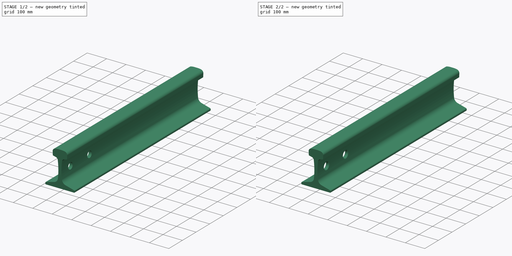
[diagram: build sequence overview — one tinted view per stage of 2, left to right]
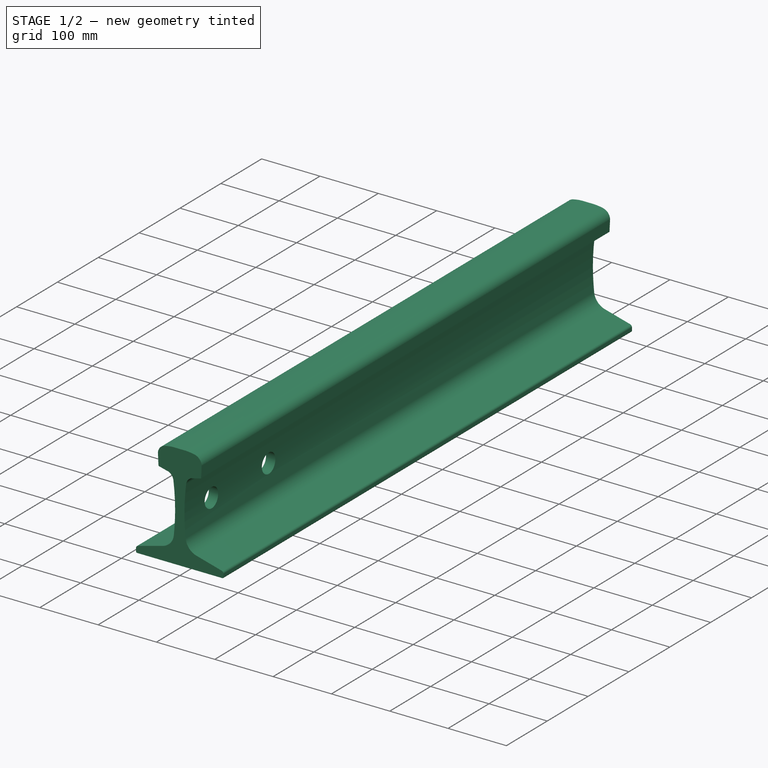
[diagram: stage 1 of 2 — iso view after this stage's code; geometry added in this stage tinted green]
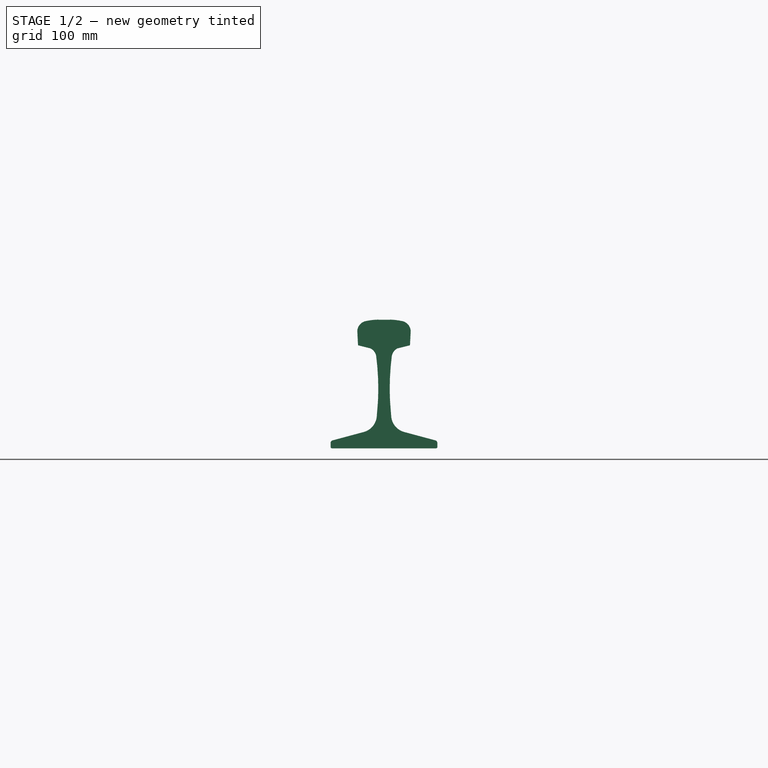
[diagram: stage 1 of 2 — front view after this stage's code; geometry added in this stage tinted green]
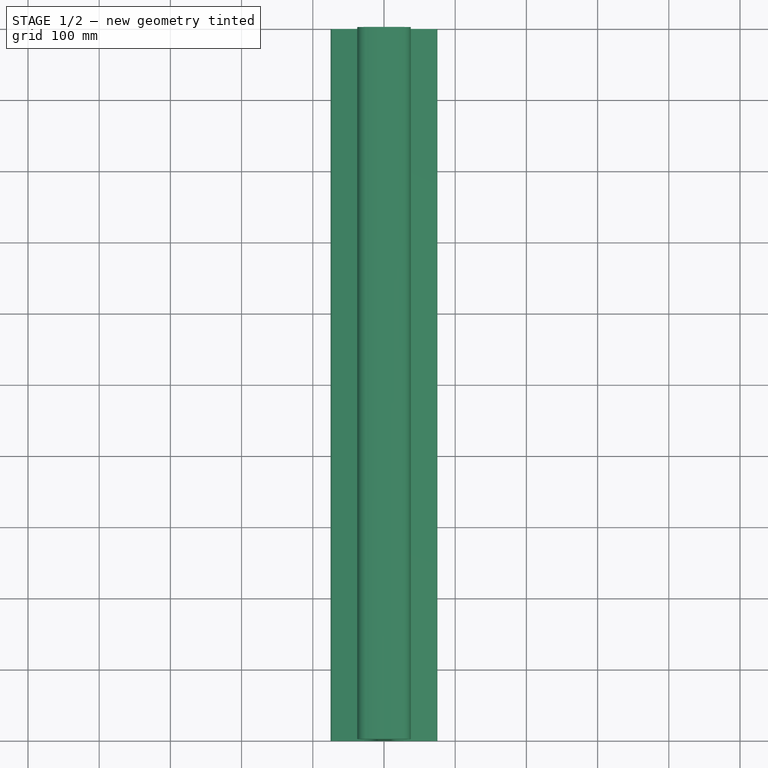
[diagram: stage 1 of 2 — top view after this stage's code; geometry added in this stage tinted green]
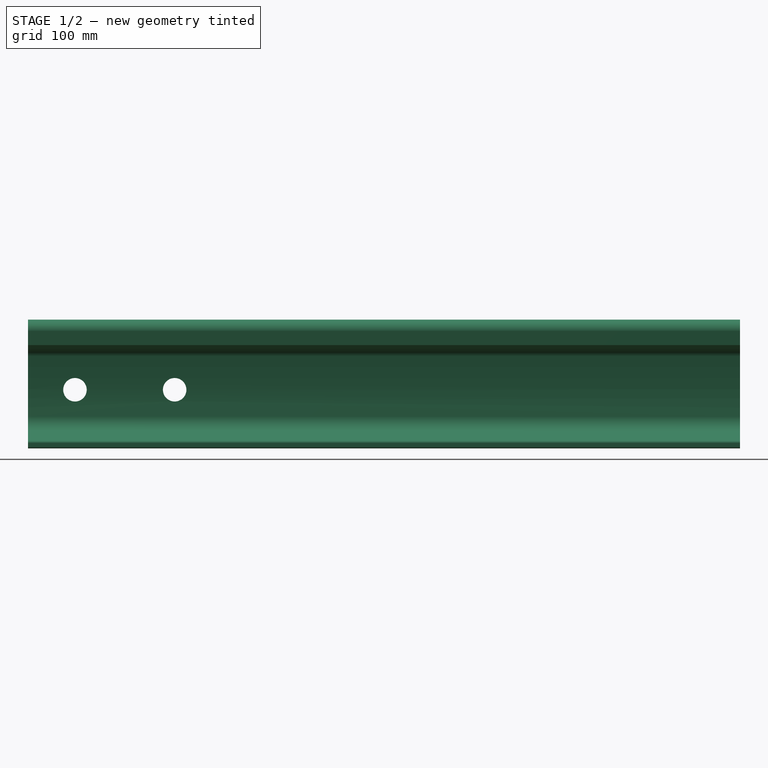
[diagram: stage 1 of 2 — right view after this stage's code; geometry added in this stage tinted green]
FCSTD DOCUMENT  (FreeCAD 0.21R33771 (Git))
Label: Rels_2
License: All rights reserved
LicenseURL: http://en.wikipedia.org/wiki/All_rights_reserved
objects: Sketcher::SketchObject×2, PartDesign::Pad×1, PartDesign::Plane×1, PartDesign::Pocket×1, PartDesign::Chamfer×1, PartDesign::Body×1
note: 10 computed .brp shape members not serialized (recipe doc carries the construction recipe); baked Part::Feature solids carry a one-line shape summary decoded from their .brp

FEATURE [Sketcher::SketchObject] Sketch
  FullyConstrained = false
  MapMode = 5
  Placement = pos=(0,0,0) rot=(1,0,0;1.5708rad)
  Support = -> [XZ_Plane]
  sketch-geometry (56):
    g0: GeomPoint X=19.6 Y=57.2948 Z=0
    g1: LineSegment StartX=-40.7283 StartY=97.3948 StartZ=0 EndX=81.9926 EndY=97.3948 EndZ=0
    g2: GeomPoint X=16.4 Y=55.4948 Z=0
    g3: GeomPoint X=10.98 Y=46.5948 Z=0
    g4: LineSegment StartX=19.6 StartY=57.2948 StartZ=0 EndX=35.3723 EndY=61.2378 EndZ=0
    g5: LineSegment StartX=19.6 StartY=57.2948 StartZ=0 EndX=59.8713 EndY=57.2948 EndZ=0
    g6: GeomPoint X=10 Y=97.4948 Z=0
    g7: GeomPoint X=10 Y=97.4948 Z=0
    g8: ArcOfCircle CenterX=9.9995 CenterY=-402.505 CenterZ=0 NormalX=0 NormalY=0 NormalZ=1 AngleXU=0 Radius=500 StartAngle=1.5708 EndAngle=1.5908
    g9: ArcOfCircle CenterX=7.49429 CenterY=17.534 CenterZ=0 NormalX=0 NormalY=0 NormalZ=1 AngleXU=0 Radius=80 StartAngle=1.35595 EndAngle=1.53947
    g10: ArcOfCircle CenterX=22.5248 CenterY=80.8321 CenterZ=0 NormalX=0 NormalY=0 NormalZ=1 AngleXU=0 Radius=15 StartAngle=0.0575424 EndAngle=1.43537
    g11: LineSegment StartX=37.5 StartY=81.6948 StartZ=0 EndX=36.5051 EndY=61.7948 EndZ=0
    g12: ArcOfCircle CenterX=34.6447 CenterY=64.1482 CenterZ=0 NormalX=0 NormalY=0 NormalZ=1 AngleXU=0 Radius=3 StartAngle=4.95736 EndAngle=5.38134
    g13: ArcOfCircle CenterX=21.3117 CenterY=50.5073 CenterZ=0 NormalX=0 NormalY=0 NormalZ=1 AngleXU=0 Radius=7 StartAngle=1.81783 EndAngle=2.34854
    g14: ArcOfCircle CenterX=25.7036 CenterY=43.7286 CenterZ=0 NormalX=0 NormalY=0 NormalZ=1 AngleXU=0 Radius=15 StartAngle=2.23985 EndAngle=2.94933
    g15: LineSegment StartX=35.3723 StartY=61.2378 StartZ=0 EndX=0 EndY=52.3948 EndZ=0
    g16: ArcOfCircle CenterX=378 CenterY=-0.270437 CenterZ=0 NormalX=0 NormalY=0 NormalZ=1 AngleXU=0 Radius=370 StartAngle=3.01459 EndAngle=3.14115
    g17: LineSegment StartX=37.4959 StartY=97.3948 StartZ=0 EndX=37.4959 EndY=81.6135 EndZ=0
    g18: LineSegment StartX=38.2849 StartY=97.3948 StartZ=0 EndX=37.4959 EndY=81.6135 EndZ=0
    g19: ArcOfCircle CenterX=407.987 CenterY=3.15486 CenterZ=0 NormalX=0 NormalY=0 NormalZ=1 AngleXU=0 Radius=400 StartAngle=3.14974 EndAngle=3.24631
    g20: ArcOfCircle CenterX=35.0528 CenterY=-36.1585 CenterZ=0 NormalX=0 NormalY=0 NormalZ=1 AngleXU=0 Radius=25 StartAngle=3.24168 EndAngle=4.49251
    g21: LineSegment StartX=29.6 StartY=-60.5566 StartZ=0 EndX=72.0377 EndY=-71.9566 EndZ=0
    g22: LineSegment StartX=73 StartY=-83.1566 StartZ=0 EndX=0 EndY=-83.1566 EndZ=0
    g23: LineSegment StartX=0 StartY=-52.6052 StartZ=0 EndX=156.528 EndY=-52.6052 EndZ=0
    g24: LineSegment StartX=75 StartY=-81.1566 StartZ=0 EndX=75 EndY=-75.8196 EndZ=0
    g25: ArcOfCircle CenterX=71 CenterY=-75.8196 CenterZ=0 NormalX=0 NormalY=0 NormalZ=1 AngleXU=0 Radius=4 StartAngle=1e-15 EndAngle=1.30836
    g26: ArcOfCircle CenterX=73 CenterY=-81.1566 CenterZ=0 NormalX=0 NormalY=0 NormalZ=1 AngleXU=0 Radius=2 StartAngle=4.71239 EndAngle=6.28319
    g27: LineSegment StartX=0 StartY=-52.6052 StartZ=0 EndX=110.442 EndY=-82.2731 EndZ=0
    g28: GeomPoint X=-19.6 Y=57.2948 Z=0
    g29: LineSegment StartX=40.7283 StartY=97.3948 StartZ=0 EndX=-81.9926 EndY=97.3948 EndZ=0
    g30: GeomPoint X=-16.4 Y=55.4948 Z=0
    g31: GeomPoint X=-10.98 Y=46.5948 Z=0
    g32: LineSegment StartX=-19.6 StartY=57.2948 StartZ=0 EndX=-35.3723 EndY=61.2378 EndZ=0
    g33: LineSegment StartX=-19.6 StartY=57.2948 StartZ=0 EndX=-59.8713 EndY=57.2948 EndZ=0
    g34: GeomPoint X=-10 Y=97.4948 Z=0
    g35: GeomPoint X=-10 Y=97.4948 Z=0
    g36: ArcOfCircle CenterX=-9.9995 CenterY=-402.505 CenterZ=0 NormalX=0 NormalY=0 NormalZ=1 AngleXU=0 Radius=500 StartAngle=1.5508 EndAngle=1.5708
    g37: ArcOfCircle CenterX=-7.49429 CenterY=17.534 CenterZ=0 NormalX=0 NormalY=0 NormalZ=1 AngleXU=0 Radius=80 StartAngle=1.60212 EndAngle=1.78564
    g38: ArcOfCircle CenterX=-22.5248 CenterY=80.8321 CenterZ=0 NormalX=0 NormalY=0 NormalZ=1 AngleXU=0 Radius=15 StartAngle=1.70622 EndAngle=3.08405
    g39: LineSegment StartX=-37.5 StartY=81.6948 StartZ=0 EndX=-36.5051 EndY=61.7948 EndZ=0
    g40: ArcOfCircle CenterX=-34.6447 CenterY=64.1482 CenterZ=0 NormalX=0 NormalY=0 NormalZ=1 AngleXU=0 Radius=3 StartAngle=4.04344 EndAngle=4.46741
    g41: ArcOfCircle CenterX=-21.3117 CenterY=50.5073 CenterZ=0 NormalX=0 NormalY=0 NormalZ=1 AngleXU=0 Radius=7 StartAngle=0.793053 EndAngle=1.32376
    g42: ArcOfCircle CenterX=-25.7036 CenterY=43.7286 CenterZ=0 NormalX=0 NormalY=0 NormalZ=1 AngleXU=0 Radius=15 StartAngle=0.19226 EndAngle=0.901746
    g43: LineSegment StartX=-35.3723 StartY=61.2378 StartZ=0 EndX=0 EndY=52.3948 EndZ=0
    g44: ArcOfCircle CenterX=-378 CenterY=-0.270437 CenterZ=0 NormalX=0 NormalY=0 NormalZ=1 AngleXU=0 Radius=370 StartAngle=0.000446478 EndAngle=0.127004
    g45: LineSegment StartX=-37.4959 StartY=97.3948 StartZ=0 EndX=-37.4959 EndY=81.6135 EndZ=0
    g46: LineSegment StartX=-38.2849 StartY=97.3948 StartZ=0 EndX=-37.4959 EndY=81.6135 EndZ=0
    g47: ArcOfCircle CenterX=-407.987 CenterY=3.15486 CenterZ=0 NormalX=0 NormalY=0 NormalZ=1 AngleXU=0 Radius=400 StartAngle=6.17847 EndAngle=6.27503
    g48: ArcOfCircle CenterX=-35.0528 CenterY=-36.1585 CenterZ=0 NormalX=0 NormalY=0 NormalZ=1 AngleXU=0 Radius=25 StartAngle=4.93227 EndAngle=6.18309
    g49: LineSegment StartX=-29.6 StartY=-60.5566 StartZ=0 EndX=-72.0377 EndY=-71.9566 EndZ=0
    g50: LineSegment StartX=-73 StartY=-83.1566 StartZ=0 EndX=0 EndY=-83.1566 EndZ=0
    g51: LineSegment StartX=0 StartY=-52.6052 StartZ=0 EndX=-156.528 EndY=-52.6052 EndZ=0
    g52: LineSegment StartX=-75 StartY=-81.1566 StartZ=0 EndX=-75 EndY=-75.8196 EndZ=0
    g53: ArcOfCircle CenterX=-71 CenterY=-75.8196 CenterZ=0 NormalX=0 NormalY=0 NormalZ=1 AngleXU=0 Radius=4 StartAngle=1.83323 EndAngle=3.14159
    g54: ArcOfCircle CenterX=-73 CenterY=-81.1566 CenterZ=0 NormalX=0 NormalY=0 NormalZ=1 AngleXU=0 Radius=2 StartAngle=3.14159 EndAngle=4.71239
    g55: LineSegment StartX=0 StartY=-52.6052 StartZ=0 EndX=-110.442 EndY=-82.2731 EndZ=0
  constraints (137):
    c: DistanceX(g-1,g0) = 19.6
    c: Horizontal(g1)
    c: Distance(g0,g1) = 40.1
    c: DistanceX(g-1,g2) = 16.4
    c: Distance(g2,g1) = 41.9
    c: Distance(g3,g1) = 50.8
    c: Coincident(g4,g0)
    c: Coincident(g5,g4)
    c: Horizontal(g5)
    c: Distance(g10,g1) = 15.7
    c: Coincident(g6,g7)
    c: DistanceX(g10) = 37.5
    c: DistanceX(g-1,g6) = 10
    c: Coincident(g8,g6)
    c: Radius(g8) = 500
    c: PointOnObject(g8,g-2)
    c: PointOnObject(g8,g1)
    c: Distance(g8,g1) = 0.1
    c: Coincident(g9,g8)
    c: Radius(g9) = 80
    c: DistanceX(g-1,g9) = 24.55
    c: Distance(g9,g1) = 1.7
    c: Coincident(g10,g9)
    c: Radius(g10) = 15
    c: Coincident(g11,g10)
    c: Coincident(g12,g4)
    c: Radius(g12) = 3
    c: Angle(g5,g4) = 0.244974  '1:4'
    c: Coincident(g13,g4)
    c: Coincident(g13,g2)
    c: Radius(g13) = 7
    c: Coincident(g14,g13)
    c: Radius(g14) = 15
    c: Coincident(g3,g14)
    c: Coincident(g15,g4)
    c: PointOnObject(g4,g15)
    c: PointOnObject(g15,g-2)
    c: Coincident(g16,g14)
    c: DistanceX(g16) = 8
    c: Vertical(g17)
    c: PointOnObject(g10,g18)
    c: PointOnObject(g11,g18)
    c: Angle(g18,g17) = 0.0499513
    c: Radius(g16) = 370
    c: Coincident(g19,g16)
    c: Radius(g19) = 400
    c: Coincident(g20,g19)
    c: Radius(g20) = 25
    c: Coincident(g18,g17)
    c: PointOnObject(g17,g1)
    c: PointOnObject(g18,g1)
    c: DistanceX(g-2,g14) = 10.98
    c: Distance(g16,g1) = 97.5
    c: Coincident(g21,g20)
    c: PointOnObject(g23,g-2)
    c: DistanceY(g23,g15) = 105
    c: DistanceX(g-1,g20) = 29.6
    c: PointOnObject(g22,g-2)
    c: Horizontal(g22)
    c: Distance(g20,g22) = 22.6
    c: Horizontal(g23)
    c: Distance(g19,g22) = 44.5
    c: Vertical(g24)
    c: Tangent(g21,g25) = 1.5708
    c: Tangent(g24,g25) = -1.5708
    c: Radius(g25) = 4
    c: Tangent(g24,g26) = -1.5708
    c: Tangent(g22,g26) = 1.5708
    c: Radius(g26) = 2
    c: DistanceY(g22,g21) = 11.2
    c: DistanceX(g22,g24) = 75
    c: Coincident(g27,g23)
    c: PointOnObject(g21,g27)
    c: PointOnObject(g20,g27)
    c: Distance(g11,g1) = 35.6
    c: Coincident(g12,g11)
    c: Horizontal(g29)
    c: Distance(g28,g29) = 40.1
    c: Distance(g30,g29) = 41.9
    c: Distance(g31,g29) = 50.8
    c: Coincident(g32,g28)
    c: Coincident(g33,g32)
    c: Horizontal(g33)
    c: Distance(g38,g29) = 15.7
    c: Coincident(g34,g35)
    c: Coincident(g36,g34)
    c: Radius(g36) = 500
    c: PointOnObject(g36,g29)
    c: Distance(g36,g29) = 0.1
    c: Coincident(g37,g36)
    c: Radius(g37) = 80
    c: Distance(g37,g29) = 1.7
    c: Coincident(g38,g37)
    c: Radius(g38) = 15
    c: Coincident(g39,g38)
    c: Coincident(g40,g32)
    c: Radius(g40) = 3
    c: Angle(g33,g32) = -0.244974  '1:4'
    c: Coincident(g41,g32)
    c: Coincident(g41,g30)
    c: Radius(g41) = 7
    c: Coincident(g42,g41)
    c: Radius(g42) = 15
    c: Coincident(g31,g42)
    c: Coincident(g43,g32)
    c: PointOnObject(g32,g43)
    c: Coincident(g44,g42)
    c: Vertical(g45)
    c: PointOnObject(g38,g46)
    c: PointOnObject(g39,g46)
    c: Angle(g46,g45) = -0.0499513
    c: Radius(g44) = 370
    c: Coincident(g47,g44)
    c: Radius(g47) = 400
    c: Coincident(g48,g47)
    c: Radius(g48) = 25
    c: Coincident(g46,g45)
    c: PointOnObject(g45,g29)
    c: PointOnObject(g46,g29)
    c: Distance(g44,g29) = 97.5
    c: Coincident(g49,g48)
    c: Horizontal(g50)
    c: Distance(g48,g50) = 22.6
    c: Horizontal(g51)
    c: Distance(g47,g50) = 44.5
    c: Vertical(g52)
    c: Tangent(g49,g53) = -1.5708
    c: Tangent(g52,g53) = 1.5708
    c: Radius(g53) = 4
    c: Tangent(g52,g54) = 1.5708
    c: Tangent(g50,g54) = -1.5708
    c: Radius(g54) = 2
    c: Coincident(g55,g51)
    c: PointOnObject(g49,g55)
    c: PointOnObject(g48,g55)
    c: Distance(g39,g29) = 35.6
    c: Coincident(g40,g39)
FEATURE [PartDesign::Pad] Pad
  Direction = (0,-1,-2e-16)
  Length = 1000
  Length2 = 10
  Placement = pos=(0,0,0) rot=(1,0,0;1.5708rad)
  Profile = -> Sketch
  ReferenceAxis = -> Sketch [N_Axis]
  Refine = true
  Reversed = true
  Type = 0
FEATURE [PartDesign::Plane] DatumPlane
  Length = 1111.06
  MapMode = 2
  Placement = pos=(0,0,0) rot=(0.57735,0.57735,0.57735;2.0944rad)
  ResizeMode = 0
  Support = -> [Y_Axis]
  Width = 266.714
FEATURE [Sketcher::SketchObject] Sketch001
  FullyConstrained = false
  MapMode = 5
  Placement = pos=(0,0,0) rot=(0.57735,0.57735,0.57735;2.0944rad)
  Support = -> [DatumPlane]
  sketch-geometry (3):
    g0: Circle CenterX=66 CenterY=-0.919239 CenterZ=0 NormalX=0 NormalY=0 NormalZ=1 AngleXU=0 Radius=16.5
    g1: Circle CenterX=206 CenterY=-0.919239 CenterZ=0 NormalX=0 NormalY=0 NormalZ=1 AngleXU=0 Radius=16.5
    g2: GeomPoint X=0 Y=-79.9192 Z=0
  constraints (7):
    c: DistanceX(g-1,g0) = 66
    c: Radius(g0) = 16.5
    c: DistanceX(g-1,g1) = 206
    c: Radius(g1) = 16.5
    c: PointOnObject(g2,g-2)
    c: DistanceY(g2,g0) = 79
    c: Horizontal(g0,g1)
FEATURE [PartDesign::Pocket] Pocket
  BaseFeature = -> Pad
  Direction = (-1,1e-16,-1e-16)
  Length = 5
  Length2 = 5
  Midplane = true
  Placement = pos=(0,0,0) rot=(1,0,0;1.5708rad)
  Profile = -> Sketch001
  ReferenceAxis = -> Sketch001 [N_Axis]
  Refine = true
  Type = 1
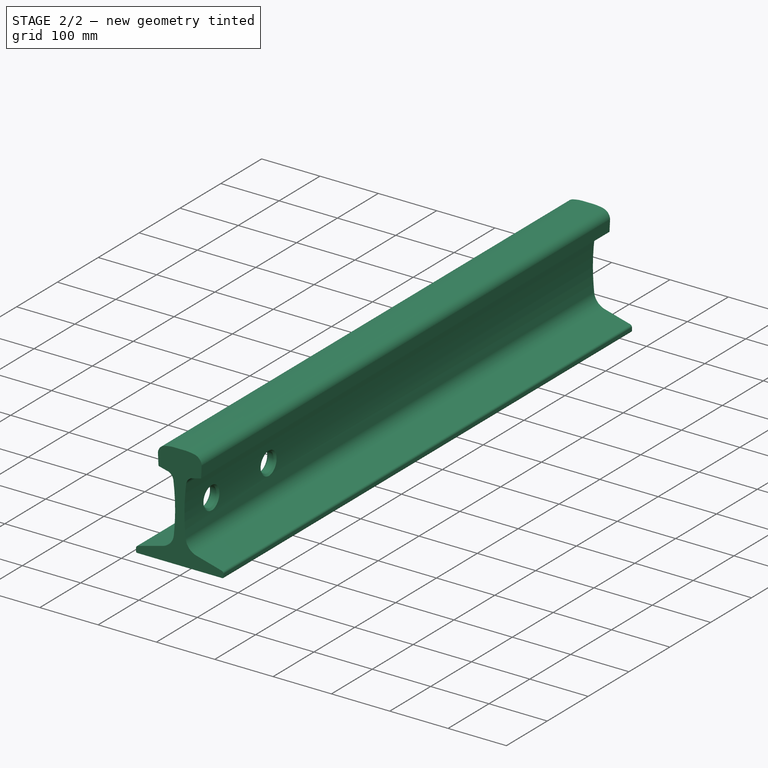
[diagram: stage 2 of 2 — iso view after this stage's code; geometry added in this stage tinted green]
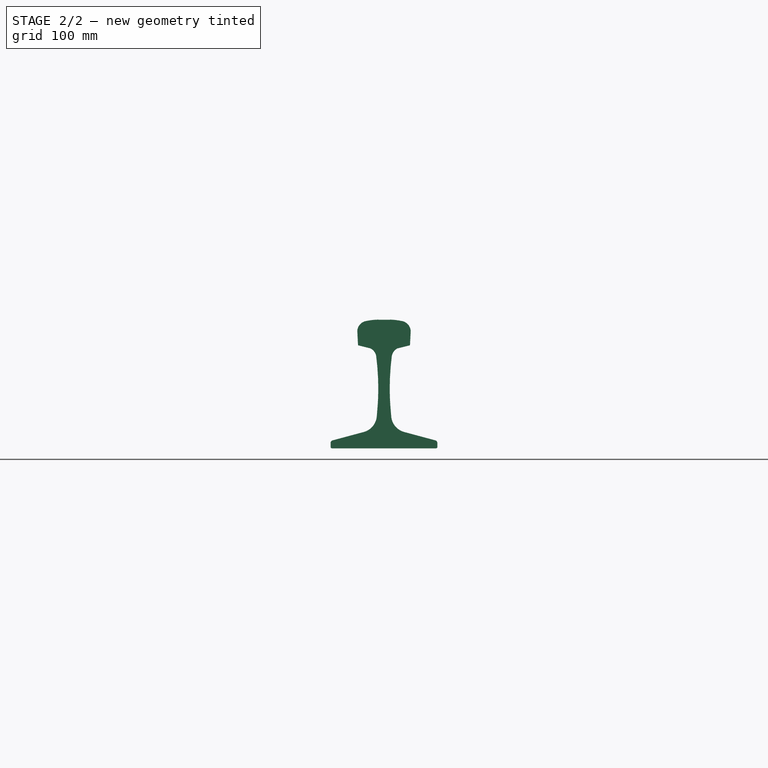
[diagram: stage 2 of 2 — front view after this stage's code; geometry added in this stage tinted green]
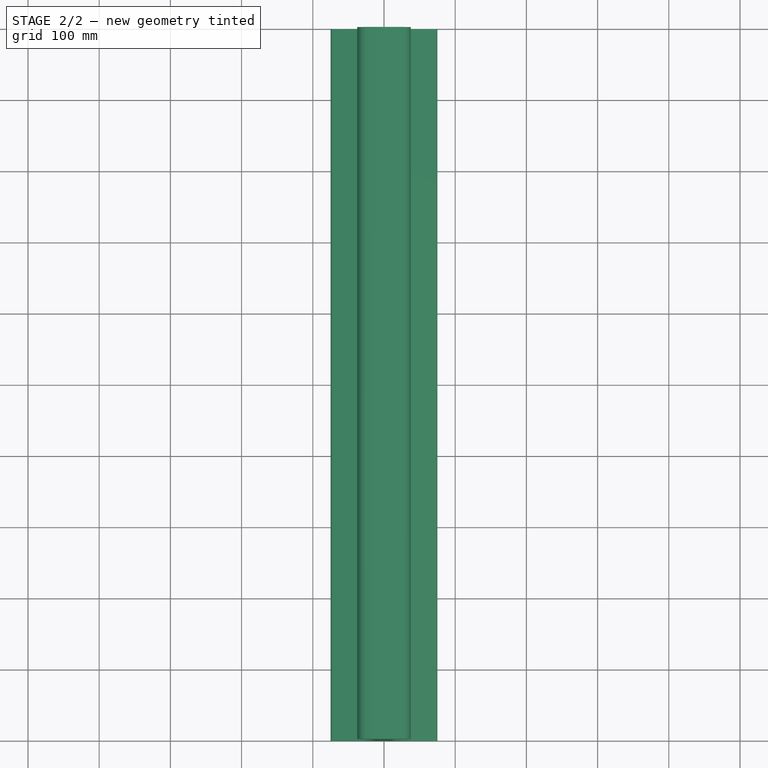
[diagram: stage 2 of 2 — top view after this stage's code; geometry added in this stage tinted green]
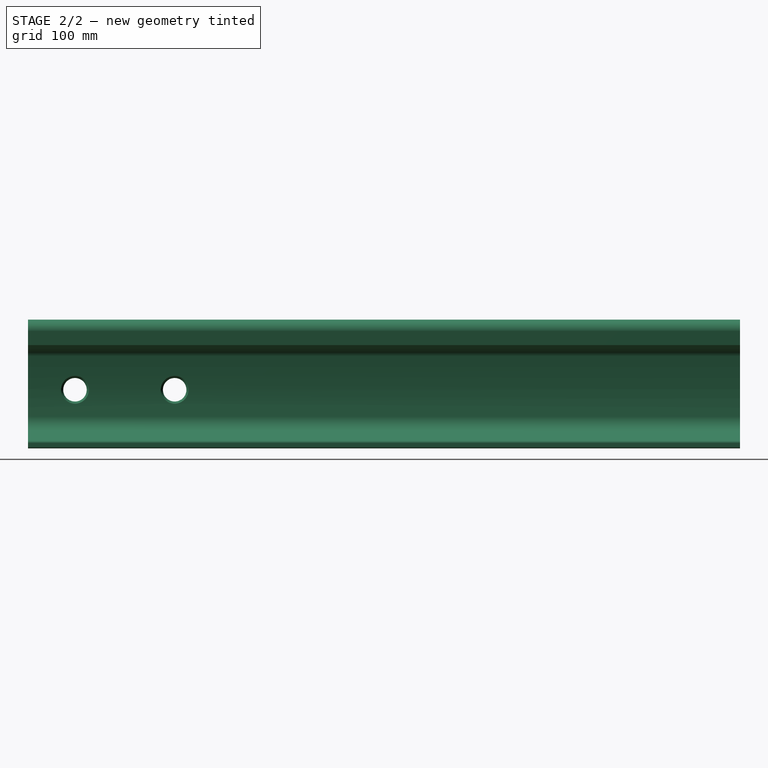
[diagram: stage 2 of 2 — right view after this stage's code; geometry added in this stage tinted green]
FEATURE [PartDesign::Chamfer] Chamfer
  Angle = 45
  Base = -> Pocket [Edge106,Edge108,Edge103,Edge109,Edge81,Edge87,Edge85,Edge83]
  BaseFeature = -> Pocket
  ChamferType = 0
  FlipDirection = false
  Placement = pos=(0,0,0) rot=(1,0,0;1.5708rad)
  Refine = true
  Size = 3
  Size2 = 1
  SupportTransform = false
  UseAllEdges = false
FEATURE [PartDesign::Body] Body
  Group = -> [Sketch,Pad,DatumPlane,Sketch001,Pocket,Chamfer]
  Origin = -> Origin
  Tip = -> Chamfer
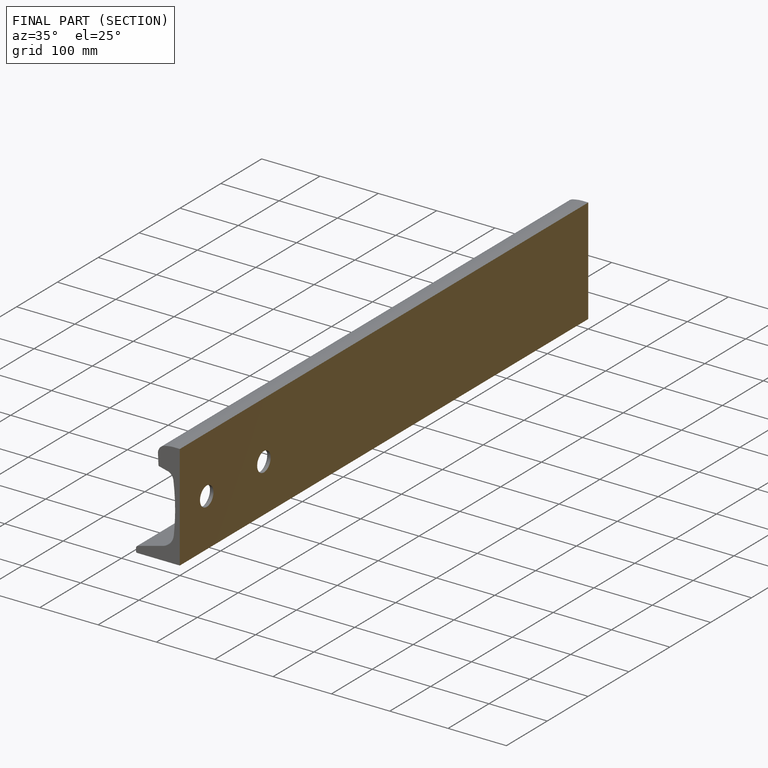
[diagram: finished part — half-section view (interior)]
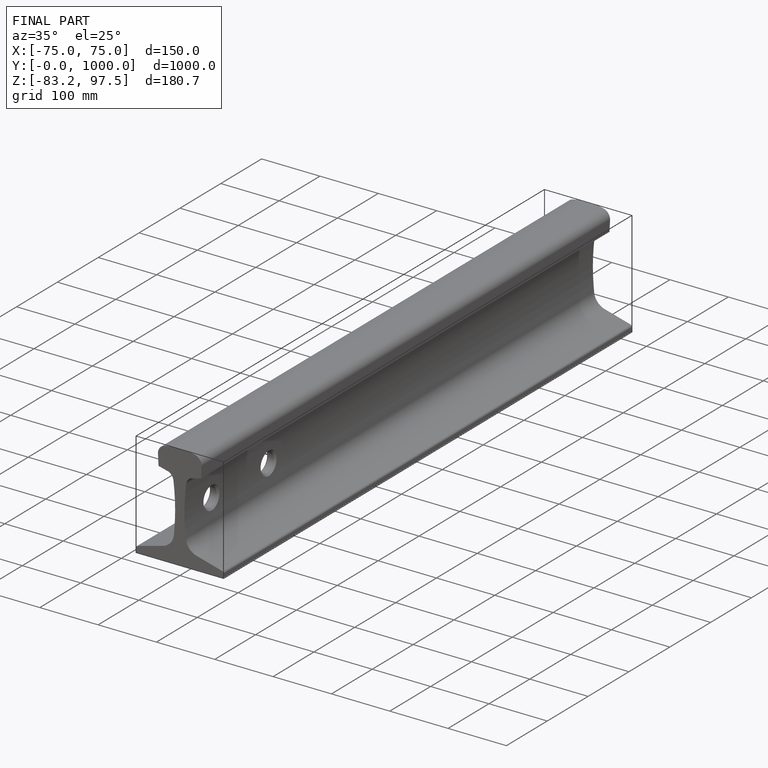
[diagram: finished part — iso view with bounding-box wireframe]
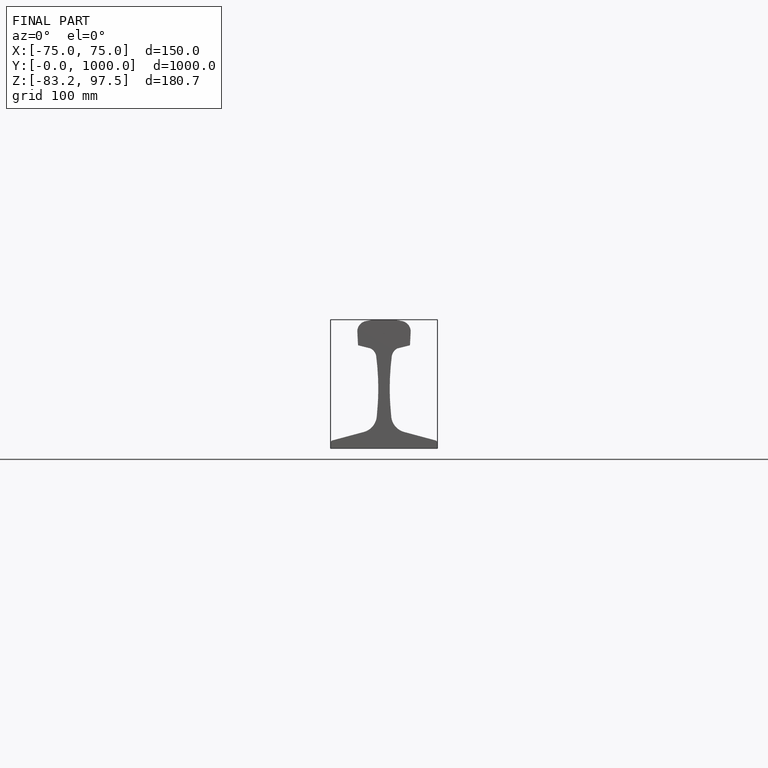
[diagram: finished part — front view with bounding-box wireframe]
